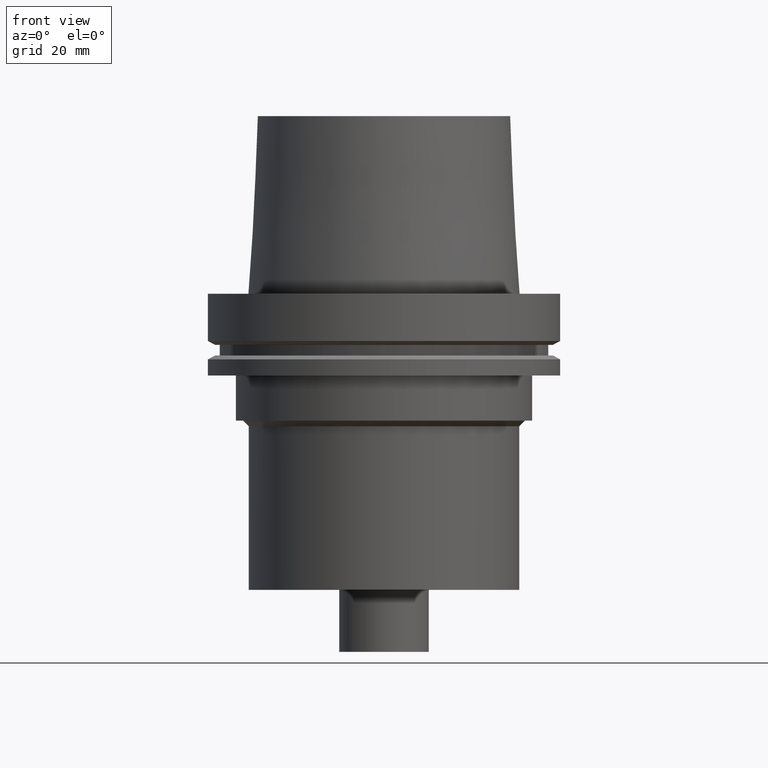
[diagram: clean part render]
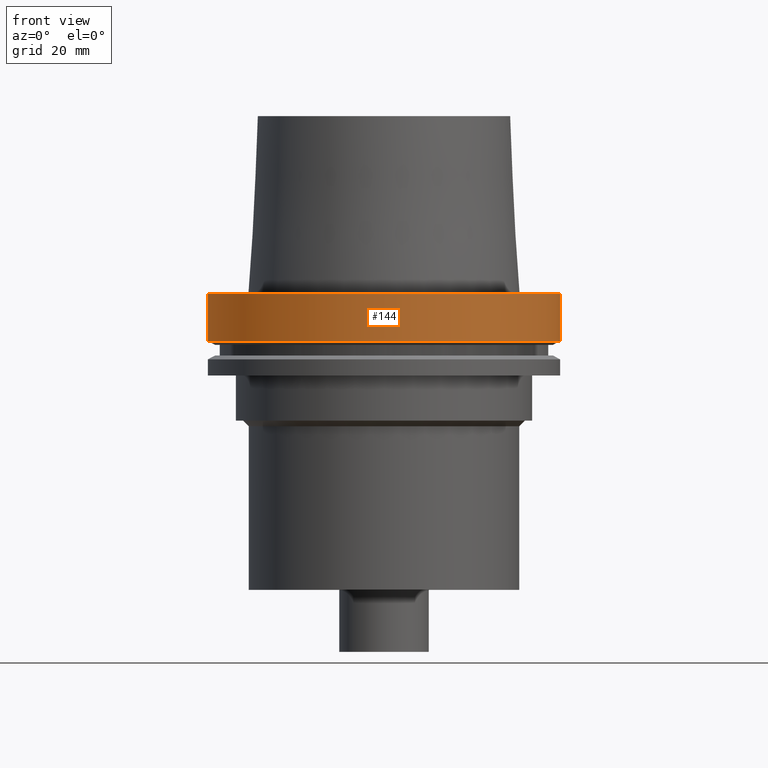
[diagram: same view with one face highlighted and labeled with its STEP entity id]
A machine part, front view. The second image highlights one B-rep face of the part: STEP entity #144.
In plain terms, the highlighted cylindrical surface (bore or boss wall) has radius 62.5 mm, axis along (0, 0, -1).
Its self-contained STEP definition (entity closure, byte-faithful):
#108=EDGE_CURVE('Unnamed[1]',#243,#243,#244,.T.);
#144=ADVANCED_FACE('Unnamed[1]',(#297,#298),#299,.T.);
#149=EDGE_CURVE('Unnamed[1]',#306,#306,#307,.T.);
#243=VERTEX_POINT('',#410);
#244=CIRCLE('',#411,62.5000000000002);
#297=FACE_BOUND('',#478,.T.);
#298=FACE_BOUND('',#479,.T.);
#299=CYLINDRICAL_SURFACE('',#480,62.5000000000001);
#306=VERTEX_POINT('',#489);
#307=CIRCLE('',#490,62.5);
#410=CARTESIAN_POINT('',(-5.58935713239973E-030,62.5000000000002,8.63540424946709E-014));
#411=AXIS2_PLACEMENT_3D('',#580,#581,#582);
#478=EDGE_LOOP('',(#636));
#479=EDGE_LOOP('',(#637));
#480=AXIS2_PLACEMENT_3D('',#638,#639,#640);
#489=CARTESIAN_POINT('',(1.02578894188644E-015,62.5,-16.7524047358084));
#490=AXIS2_PLACEMENT_3D('',#647,#648,#649);
#580=CARTESIAN_POINT('',(-5.22098332203606E-030,-1.04419666440721E-029,8.5265128291212E-014));
#581=DIRECTION('',(6.12323399573677E-017,1.22464679914735E-016,-1.0));
#582=DIRECTION('',(-1.23259516440783E-032,1.0,1.22464679914735E-016));
#636=ORIENTED_EDGE('',*,*,#149,.F.);
#637=ORIENTED_EDGE('',*,*,#108,.T.);
#638=CARTESIAN_POINT('',(5.12894470943215E-016,1.02578894188643E-015,-8.37620236790416));
#639=DIRECTION('',(6.12323399573677E-017,1.22464679914735E-016,-1.0));
#640=DIRECTION('',(-1.23259516440783E-032,1.0,1.22464679914735E-016));
#647=CARTESIAN_POINT('',(1.02578894188644E-015,2.05157788377287E-015,-16.7524047358084));
#648=DIRECTION('',(6.12323399573676E-017,1.22464679914735E-016,-1.0));
#649=DIRECTION('',(-1.23259516440783E-032,1.0,1.22464679914735E-016));